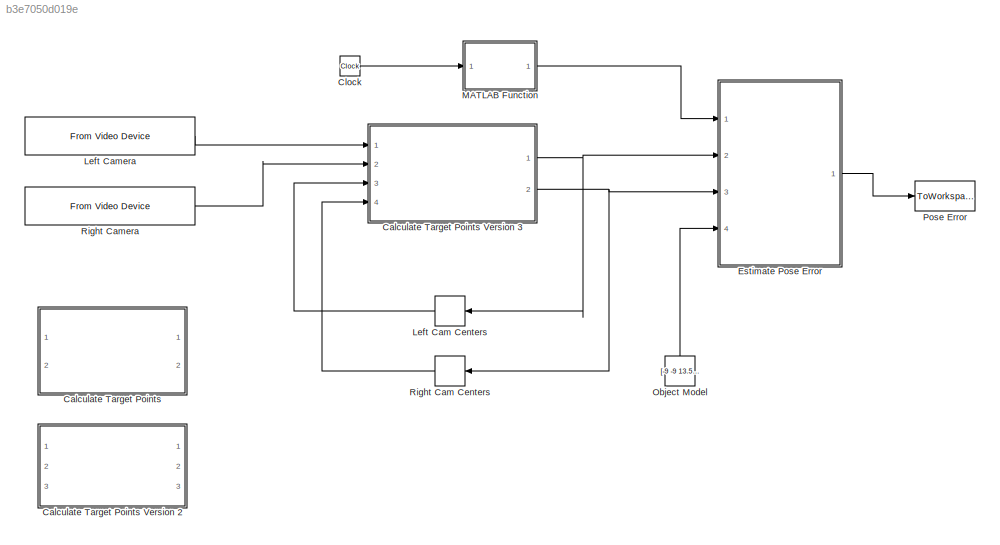
MODEL slx_b3e7050d019e
KIND model
CONFIG AbsTol = auto
CONFIG FixedStep = 1/30
CONFIG MaxStep = auto
CONFIG MinStep = auto
CONFIG RelTol = 1e-3
CONFIG SampleTimeConstraint = Unconstrained
CONFIG Solver = FixedStepDiscrete
CONFIG SolverMode = Auto
CONFIG SolverName = FixedStepDiscrete
CONFIG StartTime = 0.0
CONFIG StopTime = 10
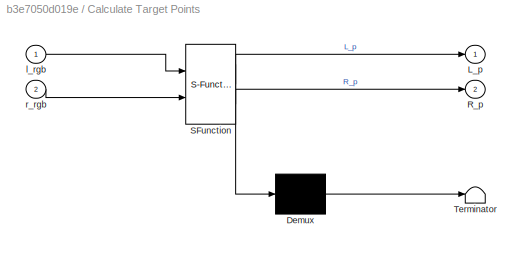
BLOCK [SubSystem] Calculate Target Points
  Commented = on
  ErrorFcn = Stateflow.Translate.translate
  PermitHierarchicalResolution = ExplicitOnly
  Ports = [2, 2]
  RequestExecContextInheritance = off
  SFBlockType = MATLAB Function
  TreatAsAtomicUnit = on
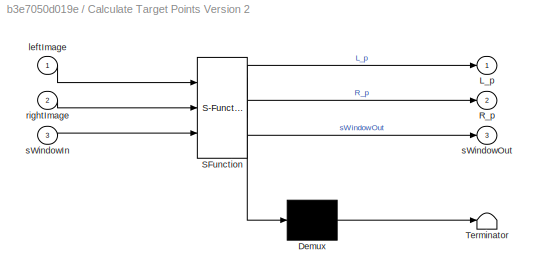
BLOCK [SubSystem] Calculate Target Points Version 2
  Commented = on
  ErrorFcn = Stateflow.Translate.translate
  PermitHierarchicalResolution = ExplicitOnly
  Ports = [3, 3]
  RequestExecContextInheritance = off
  SFBlockType = MATLAB Function
  TreatAsAtomicUnit = on
BLOCK [Demux] Calculate Target Points Version 2/ Demux 
  Outputs = 1
  Ports = [1, 1]
BLOCK [S-Function] Calculate Target Points Version 2/ SFunction 
  EnableBusSupport = on
  FunctionName = sf_sfun
  PortCounts = [3 4]
  Ports = [3, 4]
  Tag = Stateflow S-Function mirageTracking 4
BLOCK [Terminator] Calculate Target Points Version 2/ Terminator 
BLOCK [Outport] Calculate Target Points Version 2/L_p
  IconDisplay = Port number
BLOCK [Outport] Calculate Target Points Version 2/R_p
  IconDisplay = Port number
  Port = 2
BLOCK [Inport] Calculate Target Points Version 2/leftImage
  IconDisplay = Port number
BLOCK [Inport] Calculate Target Points Version 2/rightImage
  IconDisplay = Port number
  Port = 2
BLOCK [Inport] Calculate Target Points Version 2/sWindowIn
  IconDisplay = Port number
  Port = 3
BLOCK [Outport] Calculate Target Points Version 2/sWindowOut
  IconDisplay = Port number
  Port = 3
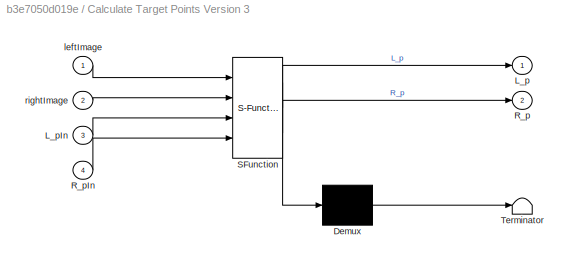
BLOCK [SubSystem] Calculate Target Points Version 3
  ErrorFcn = Stateflow.Translate.translate
  PermitHierarchicalResolution = ExplicitOnly
  Ports = [4, 2]
  RequestExecContextInheritance = off
  SFBlockType = MATLAB Function
  TreatAsAtomicUnit = on
BLOCK [Demux] Calculate Target Points Version 3/ Demux 
  Outputs = 1
  Ports = [1, 1]
BLOCK [S-Function] Calculate Target Points Version 3/ SFunction 
  EnableBusSupport = on
  FunctionName = sf_sfun
  PortCounts = [4 3]
  Ports = [4, 3]
  Tag = Stateflow S-Function mirageTracking 5
BLOCK [Terminator] Calculate Target Points Version 3/ Terminator 
BLOCK [Outport] Calculate Target Points Version 3/L_p
  IconDisplay = Port number
BLOCK [Inport] Calculate Target Points Version 3/L_pIn
  IconDisplay = Port number
  Port = 3
BLOCK [Outport] Calculate Target Points Version 3/R_p
  IconDisplay = Port number
  Port = 2
BLOCK [Inport] Calculate Target Points Version 3/R_pIn
  IconDisplay = Port number
  Port = 4
BLOCK [Inport] Calculate Target Points Version 3/leftImage
  IconDisplay = Port number
BLOCK [Inport] Calculate Target Points Version 3/rightImage
  IconDisplay = Port number
  Port = 2
BLOCK [Demux] Calculate Target Points/ Demux 
  Outputs = 1
  Ports = [1, 1]
BLOCK [S-Function] Calculate Target Points/ SFunction 
  EnableBusSupport = on
  FunctionName = sf_sfun
  PortCounts = [2 3]
  Ports = [2, 3]
  Tag = Stateflow S-Function mirageTracking 1
BLOCK [Terminator] Calculate Target Points/ Terminator 
BLOCK [Outport] Calculate Target Points/L_p
  IconDisplay = Port number
BLOCK [Outport] Calculate Target Points/R_p
  IconDisplay = Port number
  Port = 2
BLOCK [Inport] Calculate Target Points/l_rgb
  IconDisplay = Port number
BLOCK [Inport] Calculate Target Points/r_rgb
  IconDisplay = Port number
  Port = 2
BLOCK [Clock] Clock
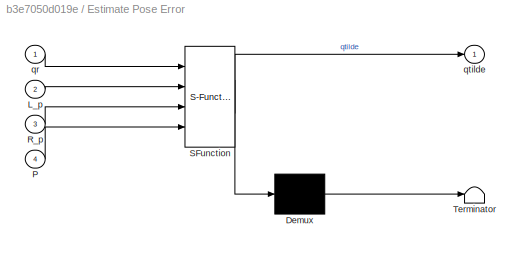
BLOCK [SubSystem] Estimate Pose Error
  ErrorFcn = Stateflow.Translate.translate
  PermitHierarchicalResolution = ExplicitOnly
  Ports = [4, 1]
  RequestExecContextInheritance = off
  SFBlockType = MATLAB Function
  TreatAsAtomicUnit = on
BLOCK [Demux] Estimate Pose Error/ Demux 
  Outputs = 1
  Ports = [1, 1]
BLOCK [S-Function] Estimate Pose Error/ SFunction 
  EnableBusSupport = on
  FunctionName = sf_sfun
  PortCounts = [4 2]
  Ports = [4, 2]
  Tag = Stateflow S-Function mirageTracking 3
BLOCK [Terminator] Estimate Pose Error/ Terminator 
BLOCK [Inport] Estimate Pose Error/L_p
  IconDisplay = Port number
  Port = 2
BLOCK [Inport] Estimate Pose Error/P
  IconDisplay = Port number
  Port = 4
BLOCK [Inport] Estimate Pose Error/R_p
  IconDisplay = Port number
  Port = 3
BLOCK [Inport] Estimate Pose Error/qr
  IconDisplay = Port number
BLOCK [Outport] Estimate Pose Error/qtilde
  IconDisplay = Port number
BLOCK [Memory] Left Cam Centers
  InheritSampleTime = on
  X0 = [598.500000000000,692.500000000000,645.500000000000,645.045454545455;681.157142857143,682.500000000000,673.159090909091,602.681818181818]
BLOCK [Reference] Left Camera  REF=imaqlib/From Video Device
  AllMetadata = IsPositionTracked;IsSkeletonTracked;JointDepthIndices;JointImageIndices;JointTrackingState;JointWorldCoordinates;PositionDepthIndices;PositionImageIndices;PositionWorldCoordinates;SegmentationData;SkeletonTrackingID
  BayerSensorAlignment = grbg
  BlockHandle = 1921.0006
  CanDoHWTrigger = no
  DataType = single
  DevXMLPath = <path>
  Device = winvideo 1 (Logitech HD Webcam C525)
  DeviceMenu = (none)
  EnableHWTrigger = off
  EngLibPath = C:\Program Files\MATLAB\R2015a\toolbox\imaq\imaqblks\imaqmex\win64
  EngXMLPath = C:\Program Files\MATLAB\R2015a\toolbox\imaq\imaq\private
  ObjConstructor = videoinput('winvideo', 1)
  OutputPortsMode = One multidimensional signal
  Ports = [0, 1]
  ROIColumn = 0
  ROIHeight = 960
  ROIPosition = [0 0 960 1280]
  ROIRow = 0
  ROIWidth = 1280
  ReturnedColorSpace = rgb
  SampleTime = 1/30
  SourceBlock = imaqlib/From Video Device
  SourceType = From Video Device
  TriggerConfiguration = none/none
  UserDataPersistent = on
  VideoFormat = RGB24_1280x960
  VideoFormatMenu = (none)
  VideoSource = input1
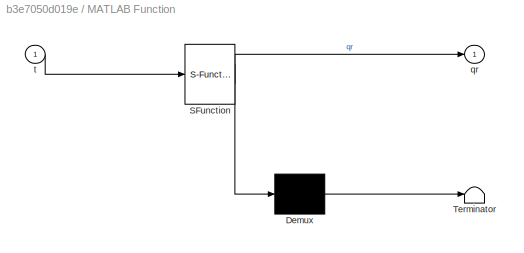
BLOCK [SubSystem] MATLAB Function
  ErrorFcn = Stateflow.Translate.translate
  PermitHierarchicalResolution = ExplicitOnly
  Ports = [1, 1]
  RequestExecContextInheritance = off
  SFBlockType = MATLAB Function
  TreatAsAtomicUnit = on
BLOCK [Demux] MATLAB Function/ Demux 
  Outputs = 1
  Ports = [1, 1]
BLOCK [S-Function] MATLAB Function/ SFunction 
  EnableBusSupport = on
  FunctionName = sf_sfun
  PortCounts = [1 2]
  Ports = [1, 2]
  Tag = Stateflow S-Function mirageTracking 2
BLOCK [Terminator] MATLAB Function/ Terminator 
BLOCK [Outport] MATLAB Function/qr
  IconDisplay = Port number
BLOCK [Inport] MATLAB Function/t
  IconDisplay = Port number
BLOCK [Constant] Object Model
  Value = [-9 -9 13.5 0; 12.75 -12.75 0 0; 2 1.75 2 22.5; 1 1 1 1]
  VectorParams1D = off
BLOCK [ToWorkspace] Pose Error
  FixptAsFi = on
  MaxDataPoints = inf
  Ports = [1]
  SampleTime = -1
  Save2DSignal = 3-D array (concatenate along third dimension)
  VariableName = q
BLOCK [Memory] Right Cam Centers
  InheritSampleTime = on
  X0 = [566.500000000000,660.814516129032,616.161764705882,612.663934426230;756.500000000000,756.250000000000,747.161764705882,676.614754098361]
BLOCK [Reference] Right Camera  REF=imaqlib/From Video Device
  AllMetadata = IsPositionTracked;IsSkeletonTracked;JointDepthIndices;JointImageIndices;JointTrackingState;JointWorldCoordinates;PositionDepthIndices;PositionImageIndices;PositionWorldCoordinates;SegmentationData;SkeletonTrackingID
  BayerSensorAlignment = grbg
  BlockHandle = 1921.0006
  CanDoHWTrigger = no
  DataType = single
  DevXMLPath = <path>
  Device = winvideo 2 (Logitech HD Webcam C525)
  DeviceMenu = (none)
  EnableHWTrigger = off
  EngLibPath = C:\Program Files\MATLAB\R2015a\toolbox\imaq\imaqblks\imaqmex\win64
  EngXMLPath = C:\Program Files\MATLAB\R2015a\toolbox\imaq\imaq\private
  ObjConstructor = videoinput('winvideo', 2)
  OutputPortsMode = One multidimensional signal
  Ports = [0, 1]
  ROIColumn = 0
  ROIHeight = 960
  ROIPosition = [0 0 960 1280]
  ROIRow = 0
  ROIWidth = 1280
  ReturnedColorSpace = rgb
  SampleTime = 1/30
  SourceBlock = imaqlib/From Video Device
  SourceType = From Video Device
  TriggerConfiguration = none/none
  UserDataPersistent = on
  VideoFormat = RGB24_1280x960
  VideoFormatMenu = (none)
  VideoSource = input1
NET Calculate Target Points Version 3:1 -> Estimate Pose Error:2, Left Cam Centers:1
NET Calculate Target Points Version 3:2 -> Estimate Pose Error:3, Right Cam Centers:1
LINE Clock:1 -> MATLAB Function:1
LINE Estimate Pose Error:1 -> Pose Error:1
LINE Left Cam Centers:1 -> Calculate Target Points Version 3:3
LINE Left Camera:1 -> Calculate Target Points Version 3:1
LINE MATLAB Function:1 -> Estimate Pose Error:1
LINE Object Model:1 -> Estimate Pose Error:4
LINE Right Cam Centers:1 -> Calculate Target Points Version 3:4
LINE Right Camera:1 -> Calculate Target Points Version 3:2
note: NET lines group one-source signal fan-out (src -> all destinations, sorted); 1:1 wires keep LINE
CHART Calculate Target Points states=1 transitions=1
  STATE_LABEL 'eML_blk_kernel()'
  STATE_LABEL 'SCRIPT:\nfunction [L_p, R_p] = getCenter(l_rgb,r_rgb)\n\n    %#codegen\n    L_p=zeros(2,4);\n    R_p=zeros(2,4);\n    \n    %input left image(l_rgb), right image(r_rgb), Pose target position \n    [m,n,c]=size(l_rgb);\n    \n    %define image variables for processing\n    l_gray=zeros(m,n);      r_gray=zeros(m,n);\n    l_rgb1=zeros(m,n,c);    r_rgb1=zeros(m,n,c);\n    l_rgb2=zeros(m,n);      r_rgb2=zeros(m,n);...<+1816ch>'
CHART MATLAB Function states=1 transitions=1
  STATE_LABEL 'eML_blk_kernel()'
  STATE_LABEL 'SCRIPT:\nfunction qr  = desired(t)\n%#codegen\n\n% qr = [xr yr thetar]^T (reference trajectory)\n% ur = [vr omegar]^T (reference control input that generates the reference trajetory in ideal conditions)\n\n% A = 1;\n% xL = 10;\n% vx = 1;\n\n% % \n% % desired x and y \n% xr = vx*t;\n% yr = A*sin(2*pi*xr/xL);\n% \n% % desired x and y derivatives\n% xrdot = vx;\n% yrdot = A*(2*pi/xL)*cos(2*pi*xr/xL);\n% \n% % desired th...<+1327ch>'
CHART Estimate Pose Error states=1 transitions=1
  STATE_LABEL 'eML_blk_kernel()'
  STATE_LABEL 'SCRIPT:\nfunction qtilde = mirage(qr,L_p,R_p,P)\n%#codegen\n\n%Desired Robot Pose for current step qr()\nrobotPoseDes.x = qr(1);\nrobotPoseDes.y = qr(2);\nrobotPoseDes.z = qr(3);\nrobotPoseDes.phi = qr(4);\nrobotPoseDes.theta = qr(5);\nrobotPoseDes.psi = qr(6);\n\n%Transform target points from I space into Desired Robot Space\nworld2robotDes = inv(EulerTrans(robotPoseDes));\nS_PDes = world2robotDes*P;\n\n%Calcula...<+549ch>'
CHART Calculate Target Points Version 2 states=1 transitions=1
  STATE_LABEL 'eML_blk_kernel()'
  STATE_LABEL 'SCRIPT:\nfunction [L_p, R_p, sWindowOut] = getCenterV2(leftImage, rightImage, sWindowIn)\n\n    %#codegen\n    L_p=zeros(2,4);\n    R_p=zeros(2,4);\n    \n    m = size(leftImage,1);\n    sWindowOut = zeros(8,4);\n    \n    for i=1:4\n        lw = sWindowIn(i,:);\n        lwx = (1:80) + lw(1);\n        lwy = (1:80) + lw(2);\n        \n        rw = sWindowIn(i+4,:);\n        rwx = (1:80) + rw(1);\n        rwy = (1:8...<+1364ch>'
CHART Calculate Target Points Version 3 states=1 transitions=1
  STATE_LABEL 'eML_blk_kernel()'
  STATE_LABEL "SCRIPT:\nfunction [L_p, R_p] = getCenterV3(leftImage, rightImage, L_pIn, R_pIn)\n    %#codegen \n    ps = 40; %Pad Size\n    leftImage = padarray(leftImage,[ps ps],'both');\n    rightImage = padarray(rightImage,[ps ps],'both');\n    \n    lwc = round(L_pIn) + ps; %Center of the left windows\n    rwc = round(R_pIn) + ps; %Center of the right windows\n    \n    L_p = zeros(2,4);\n    R_p = zeros(2,4);\n    \n   ...<+1304ch>"
note: 2 file-system paths scrubbed to <path> (not preserved elsewhere — flat text is the only slx artifact)
